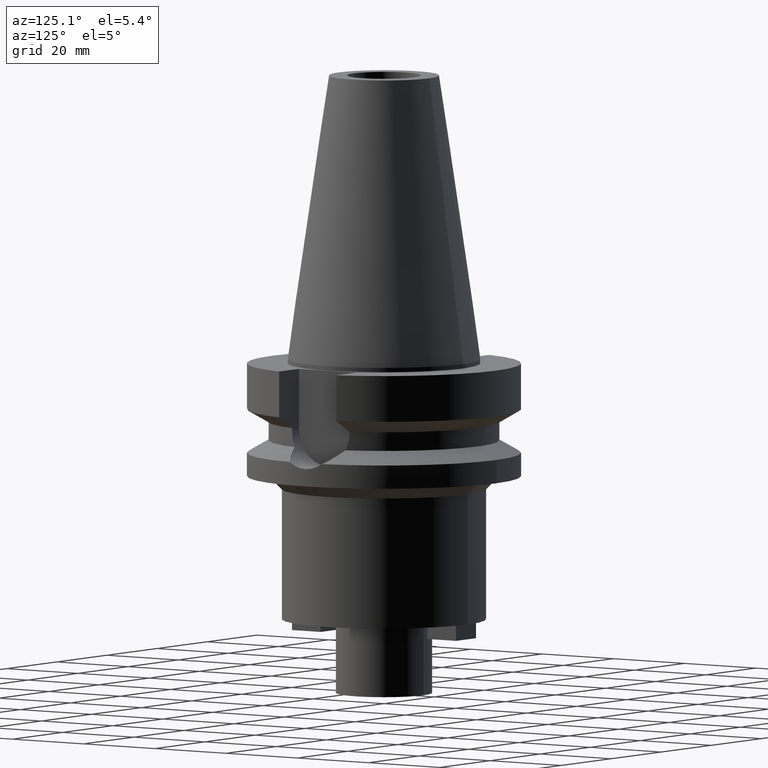
[diagram: clean part render]
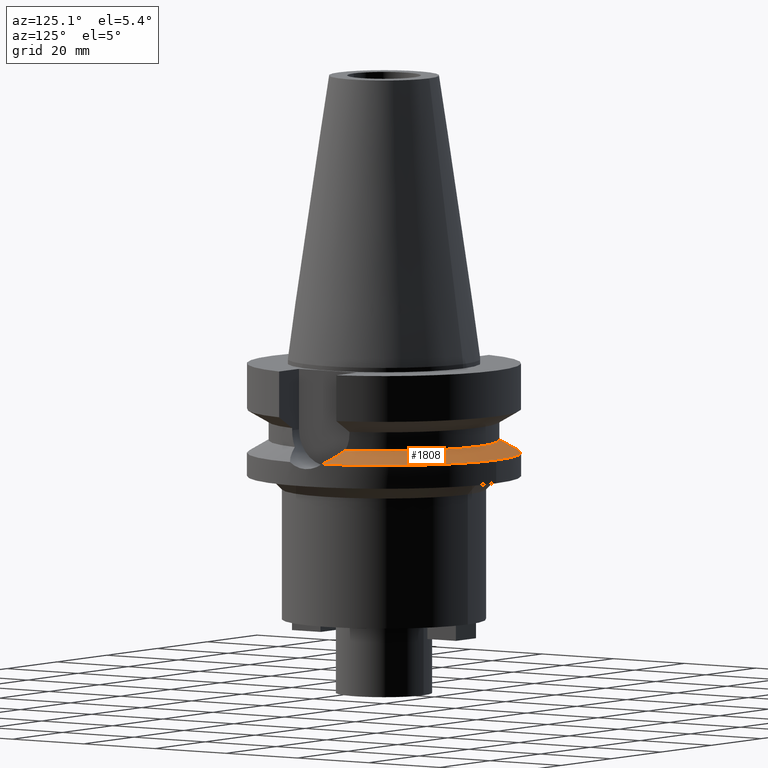
[diagram: same view with one face highlighted and labeled with its STEP entity id]
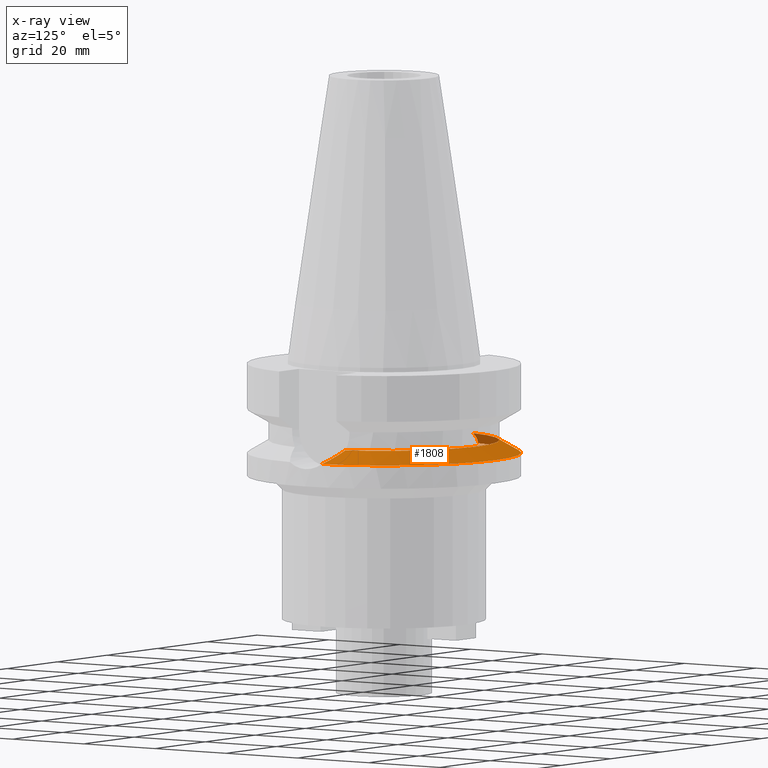
[diagram: x-ray of the same camera — body ghosted, the highlighted face saturated]
A machine part, auxiliary view. The second image highlights one B-rep face of the part: STEP entity #1808.
The next image is the same camera in x-ray: the body ghosted, the highlighted face saturated — about 6% of this face is hidden behind the body in this view.
In plain terms, the highlighted conical surface has half-angle 60 deg.
Its self-contained STEP definition (entity closure, byte-faithful):
#371=CARTESIAN_POINT('',(2.553175183775E1,7.097862220093E0,-1.874774300139E1));
#444=CARTESIAN_POINT('',(-3.117899877609E1,4.485536235554E0,-2.163449434733E1));
#445=CARTESIAN_POINT('',(-3.092683266265E1,4.676846759367E0,-2.150611810192E1));
#446=CARTESIAN_POINT('',(-3.037659268507E1,5.058748423857E0,-2.122588127551E1));
#447=CARTESIAN_POINT('',(-2.941525116641E1,5.614266947134E0,-2.073571797126E1));
#448=CARTESIAN_POINT('',(-2.830125905713E1,6.148134126428E0,-2.016689967846E1));
#449=CARTESIAN_POINT('',(-2.702450814900E1,6.649464484270E0,-1.951375418560E1));
#450=CARTESIAN_POINT('',(-2.604914930625E1,6.955638521965E0,-1.901355461986E1));
#451=CARTESIAN_POINT('',(-2.553175183775E1,7.097862220093E0,-1.874774300139E1));
#553=CARTESIAN_POINT('',(3.117899877609E1,4.485536235554E0,-2.163449434733E1));
#565=CARTESIAN_POINT('',(0.E0,0.E0,-2.163449434733E1));
#566=DIRECTION('',(0.E0,0.E0,-1.E0));
#567=DIRECTION('',(-9.898094849553E-1,1.423979757319E-1,0.E0));
#568=AXIS2_PLACEMENT_3D('',#565,#566,#567);
#573=CARTESIAN_POINT('',(0.E0,0.E0,-2.163449434733E1));
#574=DIRECTION('',(0.E0,0.E0,-1.E0));
#575=DIRECTION('',(0.E0,1.E0,0.E0));
#576=AXIS2_PLACEMENT_3D('',#573,#574,#575);
#581=CARTESIAN_POINT('',(3.117899877609E1,4.485536235554E0,-2.163449434733E1));
#582=CARTESIAN_POINT('',(3.081592047433E1,4.760992359085E0,-2.144965337669E1));
#583=CARTESIAN_POINT('',(3.002371942184E1,5.294944632739E0,-2.104615973466E1));
#584=CARTESIAN_POINT('',(2.847554816180E1,6.083148273595E0,-2.025608321990E1));
#585=CARTESIAN_POINT('',(2.704645394168E1,6.643183815335E0,-1.952503620703E1));
#586=CARTESIAN_POINT('',(2.603712728117E1,6.958943170655E0,-1.900737833540E1));
#587=CARTESIAN_POINT('',(2.553175183775E1,7.097862220093E0,-1.874774300139E1));
#592=CARTESIAN_POINT('',(0.E0,0.E0,-1.874774300139E1));
#593=DIRECTION('',(0.E0,0.E0,1.E0));
#594=DIRECTION('',(9.634623335001E-1,2.678438573620E-1,0.E0));
#595=AXIS2_PLACEMENT_3D('',#592,#593,#594);
#600=CARTESIAN_POINT('',(0.E0,0.E0,-1.874774300139E1));
#601=DIRECTION('',(0.E0,0.E0,1.E0));
#602=DIRECTION('',(0.E0,1.E0,0.E0));
#603=AXIS2_PLACEMENT_3D('',#600,#601,#602);
#1301=VERTEX_POINT('',#553);
#1303=CARTESIAN_POINT('',(0.E0,3.15E1,-2.163449434733E1));
#1304=VERTEX_POINT('',#1303);
#1317=VERTEX_POINT('',#371);
#1322=VERTEX_POINT('',#444);
#1323=VERTEX_POINT('',#451);
#1324=CARTESIAN_POINT('',(0.E0,2.65E1,-1.874774300139E1));
#1325=VERTEX_POINT('',#1324);
#1794=CARTESIAN_POINT('',(0.E0,0.E0,-2.019111867436E1));
#1795=DIRECTION('',(0.E0,0.E0,-1.E0));
#1796=DIRECTION('',(0.E0,-1.E0,0.E0));
#1797=AXIS2_PLACEMENT_3D('',#1794,#1795,#1796);
#1798=CONICAL_SURFACE('',#1797,2.9E1,6.E1);
#1799=ORIENTED_EDGE('',*,*,#1726,.F.);
#1801=ORIENTED_EDGE('',*,*,#1800,.T.);
#1802=ORIENTED_EDGE('',*,*,#1782,.T.);
#1803=ORIENTED_EDGE('',*,*,#1770,.T.);
#1804=ORIENTED_EDGE('',*,*,#1658,.T.);
#1805=ORIENTED_EDGE('',*,*,#1656,.T.);
#1806=EDGE_LOOP('',(#1799,#1801,#1802,#1803,#1804,#1805));
#1807=FACE_OUTER_BOUND('',#1806,.F.);
#452=B_SPLINE_CURVE_WITH_KNOTS('',3,(#444,#445,#446,#447,#448,#449,#450,#451),
.UNSPECIFIED.,.F.,.F.,(4,1,1,1,1,4),(0.E0,2.E-1,4.E-1,6.E-1,8.E-1,1.E0),
.UNSPECIFIED.);
#569=CIRCLE('',#568,3.15E1);
#577=CIRCLE('',#576,3.15E1);
#588=B_SPLINE_CURVE_WITH_KNOTS('',3,(#581,#582,#583,#584,#585,#586,#587),
.UNSPECIFIED.,.F.,.F.,(4,1,1,1,4),(0.E0,2.5E-1,5.E-1,7.5E-1,1.E0),
.UNSPECIFIED.);
#596=CIRCLE('',#595,2.65E1);
#604=CIRCLE('',#603,2.65E1);
#1656=EDGE_CURVE('',#1325,#1323,#604,.T.);
#1658=EDGE_CURVE('',#1317,#1325,#596,.T.);
#1726=EDGE_CURVE('',#1322,#1323,#452,.T.);
#1770=EDGE_CURVE('',#1301,#1317,#588,.T.);
#1782=EDGE_CURVE('',#1304,#1301,#577,.T.);
#1800=EDGE_CURVE('',#1322,#1304,#569,.T.);
#1808=ADVANCED_FACE('',(#1807),#1798,.T.);